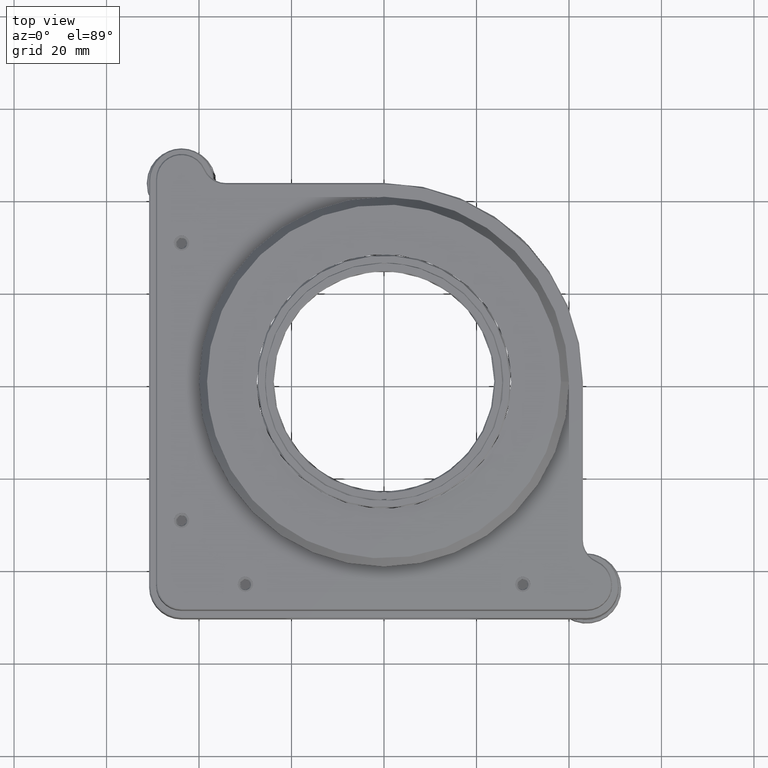
[diagram: clean part render]
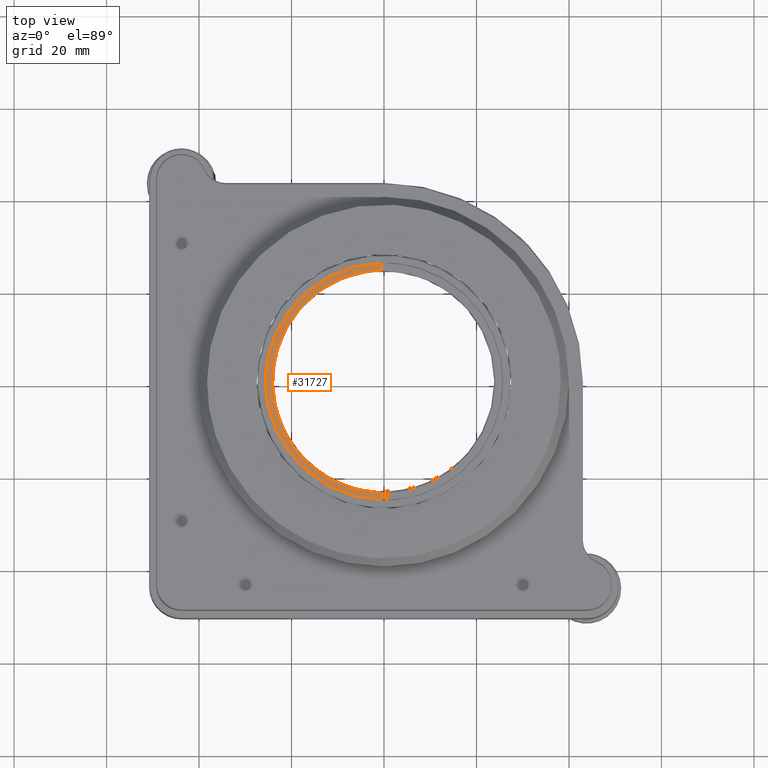
[diagram: same view with one face highlighted and labeled with its STEP entity id]
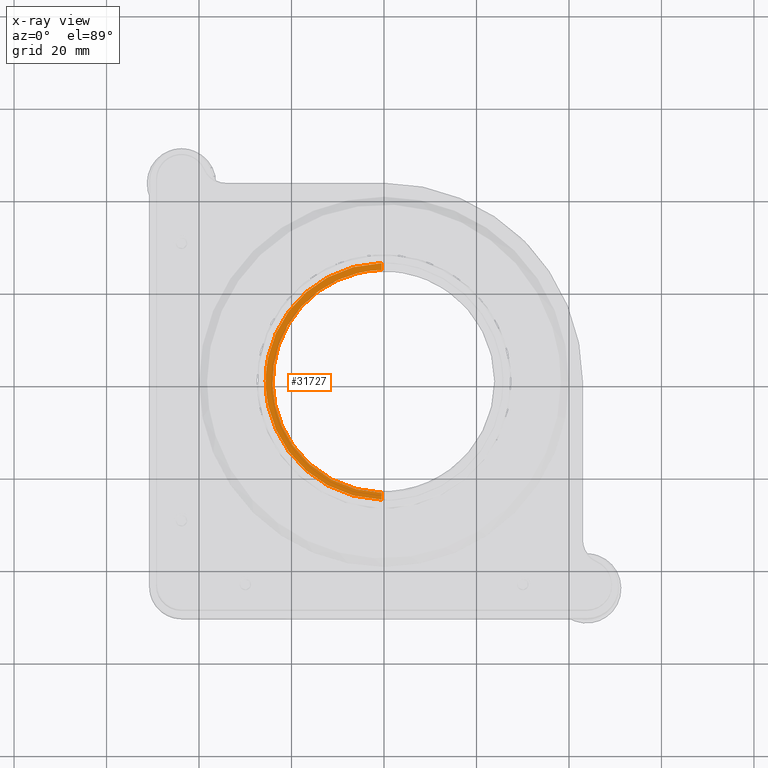
[diagram: x-ray of the same camera — body ghosted, the highlighted face saturated]
A machine part, top view. The second image highlights one B-rep face of the part: STEP entity #31727.
The next image is the same camera in x-ray: the body ghosted, the highlighted face saturated — about 0% of this face is hidden behind the body in this view.
In plain terms, the highlighted planar face has unit normal (0, 0, 1).
Its self-contained STEP definition (entity closure, byte-faithful):
#16 = ORIENTED_EDGE ( 'NONE', *, *, #15220, .T. ) ;
#261 = CARTESIAN_POINT ( 'NONE',  ( -0.5000000000003235190, 25.58961567218268129, 30.99606781186546911 ) ) ;
#489 = CARTESIAN_POINT ( 'NONE',  ( -0.5000000000003163025, -25.58961567218200273, 30.99606781186547266 ) ) ;
#1835 = CARTESIAN_POINT ( 'NONE',  ( -17.05387721565734083, -19.16455730772742427, 30.99606781186547266 ) ) ;
#1964 = CARTESIAN_POINT ( 'NONE',  ( -28.10515000000033226, -30.70873880661847366, 30.99606781186547266 ) ) ;
#2029 = CARTESIAN_POINT ( 'NONE',  ( -11.32870317585508069, -23.01167364696198447, 30.99606781186547622 ) ) ;
#2480 = CARTESIAN_POINT ( 'NONE',  ( -0.5000000000003235190, 25.58961567218268129, 30.99606781186546911 ) ) ;
#2624 = CARTESIAN_POINT ( 'NONE',  ( -1.993081340476116292, 25.56044209334502071, 30.99606781186546911 ) ) ;
#3100 = LINE ( 'NONE', #36420, #34855 ) ;
#3405 = CARTESIAN_POINT ( 'NONE',  ( -6.660298852805282444, 24.76401862340829396, 30.99606781186546556 ) ) ;
#4082 = AXIS2_PLACEMENT_3D ( 'NONE', #1964, #34892, #19887 ) ;
#4416 = CARTESIAN_POINT ( 'NONE',  ( -22.45286859668458845, -12.40650287171896515, 30.99606781186547622 ) ) ;
#5103 = FACE_OUTER_BOUND ( 'NONE', #16960, .T. ) ;
#5150 = B_SPLINE_CURVE_WITH_KNOTS ( 'NONE', 3,
 ( #489, #12501, #21563, #33598, #26064, #2029, #23315, #28830, #1835, #19763, #23121, #4416, #16798, #16610, #14023, #5170, #8132, #38104 ),
 .UNSPECIFIED., .F., .F.,
 ( 4, 2, 2, 2, 2, 2, 2, 2, 4 ),
 ( 0.000000000000000000, 4.962964347235176987, 9.925928694470353975, 14.88889304170553096, 19.85185738894070795, 24.81482173617588671, 29.77778608341106192, 34.74075043064623713, 39.70371477788141590 ),
 .UNSPECIFIED. ) ;
#5170 = CARTESIAN_POINT ( 'NONE',  ( -25.46305233572105919, -3.041243978623852318, 30.99606781186546911 ) ) ;
#5772 = CARTESIAN_POINT ( 'NONE',  ( -3.538095713774472628, 25.39878103195824011, 30.99606781186547622 ) ) ;
#6361 = CARTESIAN_POINT ( 'NONE',  ( -11.32870317585507536, 23.01167364696267015, 30.99606781186547622 ) ) ;
#6697 = VERTEX_POINT ( 'NONE', #2480 ) ;
#8132 = CARTESIAN_POINT ( 'NONE',  ( -25.59450000000033754, -1.493366327120758452, 30.99606781186547977 ) ) ;
#8150 = EDGE_CURVE ( 'NONE', #17053, #30018, #5150, .T. ) ;
#8921 = CARTESIAN_POINT ( 'NONE',  ( -17.05387721565734083, 19.16455730772810284, 30.99606781186547266 ) ) ;
#9132 = CARTESIAN_POINT ( 'NONE',  ( -25.59450000000033398, 3.387425111084444810E-13, 30.99606781186547266 ) ) ;
#9320 = CARTESIAN_POINT ( 'NONE',  ( -25.59450000000033754, 1.493366327121444792, 30.99606781186547977 ) ) ;
#9714 = EDGE_CURVE ( 'NONE', #6697, #30018, #23430, .T. ) ;
#10705 = VECTOR ( 'NONE', #11460, 1000.000000000000000 ) ;
#10714 = VERTEX_POINT ( 'NONE', #12961 ) ;
#11460 = DIRECTION ( 'NONE',  ( 0.000000000000000000, 1.000000000000000000, 0.000000000000000000 ) ) ;
#11486 = CARTESIAN_POINT ( 'NONE',  ( -22.45286859668458845, 12.40650287171965260, 30.99606781186547622 ) ) ;
#12501 = CARTESIAN_POINT ( 'NONE',  ( -1.993081340476109853, -25.56044209334433859, 30.99606781186546911 ) ) ;
#12541 = DIRECTION ( 'NONE',  ( 0.000000000000000000, 1.000000000000000000, 0.000000000000000000 ) ) ;
#12961 = CARTESIAN_POINT ( 'NONE',  ( -0.5000000000003174128, -24.08931153540887138, 30.99606781186547266 ) ) ;
#13363 =( BOUNDED_CURVE ( )  B_SPLINE_CURVE ( 2, ( #20160, #26076, #26862, #20348, #29809 ),
 .UNSPECIFIED., .F., .T. ) 
 B_SPLINE_CURVE_WITH_KNOTS ( ( 3, 2, 3 ),
 ( 6.288372600415925717E-18, 0.03716364197085206961, 0.07432728394170411146 ),
 .UNSPECIFIED. ) 
 CURVE ( )  GEOMETRIC_REPRESENTATION_ITEM ( )  RATIONAL_B_SPLINE_CURVE ( ( 0.9915653406035818129, 0.7113866499799355037, 1.000000000000000000, 0.7113866499799357257, 0.9915653406035815909 ) ) 
 REPRESENTATION_ITEM ( '' )  );
#14023 = CARTESIAN_POINT ( 'NONE',  ( -24.88940469625061169, -6.175251659280037941, 30.99606781186547622 ) ) ;
#14828 = CARTESIAN_POINT ( 'NONE',  ( -8.237169048022474627, 24.29044433013205051, 30.99606781186547266 ) ) ;
#15134 = VERTEX_POINT ( 'NONE', #28433 ) ;
#15220 = EDGE_CURVE ( 'NONE', #17053, #10714, #35514, .T. ) ;
#16610 = CARTESIAN_POINT ( 'NONE',  ( -24.44672564178360474, -7.761072417926049738, 30.99606781186547622 ) ) ;
#16733 = PLANE ( 'NONE',  #4082 ) ;
#16798 = CARTESIAN_POINT ( 'NONE',  ( -23.22859349420336983, -10.87699792966710532, 30.99606781186547622 ) ) ;
#16960 = EDGE_LOOP ( 'NONE', ( #19605, #28869, #21211, #16, #27412 ) ) ;
#17053 = VERTEX_POINT ( 'NONE', #17857 ) ;
#17857 = CARTESIAN_POINT ( 'NONE',  ( -0.5000000000003163025, -25.58961567218200273, 30.99606781186547266 ) ) ;
#19605 = ORIENTED_EDGE ( 'NONE', *, *, #24306, .T. ) ;
#19763 = CARTESIAN_POINT ( 'NONE',  ( -19.49405515404105316, -16.67623454317832454, 30.99606781186547622 ) ) ;
#19887 = DIRECTION ( 'NONE',  ( 1.000000000000000000, 0.000000000000000000, 0.000000000000000000 ) ) ;
#20160 = CARTESIAN_POINT ( 'NONE',  ( -0.5000000000003174128, -24.08931153540887138, 30.99606781186547266 ) ) ;
#20348 = CARTESIAN_POINT ( 'NONE',  ( -24.09450000000030556, 23.59958188985030603, 30.99606781186547977 ) ) ;
#21211 = ORIENTED_EDGE ( 'NONE', *, *, #8150, .F. ) ;
#21563 = CARTESIAN_POINT ( 'NONE',  ( -3.538095713774465523, -25.39878103195754733, 30.99606781186547622 ) ) ;
#23121 = CARTESIAN_POINT ( 'NONE',  ( -20.58553880366165956, -15.30647620743889270, 30.99606781186547622 ) ) ;
#23315 = CARTESIAN_POINT ( 'NONE',  ( -12.84276210207169200, -22.20621722210998072, 30.99606781186547266 ) ) ;
#23430 = B_SPLINE_CURVE_WITH_KNOTS ( 'NONE', 3,
 ( #261, #2624, #5772, #3405, #14828, #6361, #30398, #35942, #8921, #26860, #30213, #11486, #23917, #23722, #33178, #36339, #9320, #9132 ),
 .UNSPECIFIED., .F., .F.,
 ( 4, 2, 2, 2, 2, 2, 2, 2, 4 ),
 ( 0.000000000000000000, 4.962964347235176099, 9.925928694470352198, 14.88889304170552919, 19.85185738894070440, 24.81482173617587961, 29.77778608341105837, 34.74075043064623003, 39.70371477788140879 ),
 .UNSPECIFIED. ) ;
#23693 = CARTESIAN_POINT ( 'NONE',  ( -0.5000000000003230749, -30.70873880661847366, 30.99606781186547266 ) ) ;
#23722 = CARTESIAN_POINT ( 'NONE',  ( -24.44672564178360474, 7.761072417926730971, 30.99606781186547622 ) ) ;
#23917 = CARTESIAN_POINT ( 'NONE',  ( -23.22859349420337338, 10.87699792966778567, 30.99606781186547622 ) ) ;
#24306 = EDGE_CURVE ( 'NONE', #15134, #6697, #3100, .T. ) ;
#25614 = EDGE_CURVE ( 'NONE', #10714, #15134, #13363, .T. ) ;
#26064 = CARTESIAN_POINT ( 'NONE',  ( -8.237169048022476403, -24.29044433013136839, 30.99606781186547266 ) ) ;
#26076 = CARTESIAN_POINT ( 'NONE',  ( -24.09450000000031267, -23.59958188984963812, 30.99606781186548687 ) ) ;
#26860 = CARTESIAN_POINT ( 'NONE',  ( -19.49405515404105671, 16.67623454317900311, 30.99606781186547622 ) ) ;
#26862 = CARTESIAN_POINT ( 'NONE',  ( -24.09450000000031622, 3.425096565323241294E-13, 30.99606781186547622 ) ) ;
#27412 = ORIENTED_EDGE ( 'NONE', *, *, #25614, .T. ) ;
#28433 = CARTESIAN_POINT ( 'NONE',  ( -0.5000000000003222977, 24.08931153540956061, 30.99606781186547266 ) ) ;
#28611 = CARTESIAN_POINT ( 'NONE',  ( -25.59450000000033398, 3.387425111084444810E-13, 30.99606781186547266 ) ) ;
#28830 = CARTESIAN_POINT ( 'NONE',  ( -15.70570289888890692, -20.28259150547036782, 30.99606781186547622 ) ) ;
#28869 = ORIENTED_EDGE ( 'NONE', *, *, #9714, .T. ) ;
#29809 = CARTESIAN_POINT ( 'NONE',  ( -0.5000000000003222977, 24.08931153540956061, 30.99606781186547266 ) ) ;
#30018 = VERTEX_POINT ( 'NONE', #28611 ) ;
#30213 = CARTESIAN_POINT ( 'NONE',  ( -20.58553880366165245, 15.30647620743957837, 30.99606781186547622 ) ) ;
#30398 = CARTESIAN_POINT ( 'NONE',  ( -12.84276210207169910, 22.20621722211066640, 30.99606781186547266 ) ) ;
#31727 = ADVANCED_FACE ( 'NONE', ( #5103 ), #16733, .T. ) ;
#33178 = CARTESIAN_POINT ( 'NONE',  ( -24.88940469625061169, 6.175251659280717398, 30.99606781186547622 ) ) ;
#33598 = CARTESIAN_POINT ( 'NONE',  ( -6.660298852805277114, -24.76401862340761184, 30.99606781186546556 ) ) ;
#34855 = VECTOR ( 'NONE', #12541, 1000.000000000000000 ) ;
#34892 = DIRECTION ( 'NONE',  ( 0.000000000000000000, 0.000000000000000000, 1.000000000000000000 ) ) ;
#35514 = LINE ( 'NONE', #23693, #10705 ) ;
#35942 = CARTESIAN_POINT ( 'NONE',  ( -15.70570289888890692, 20.28259150547105349, 30.99606781186547622 ) ) ;
#36339 = CARTESIAN_POINT ( 'NONE',  ( -25.46305233572105919, 3.041243978624531774, 30.99606781186546911 ) ) ;
#36420 = CARTESIAN_POINT ( 'NONE',  ( -0.5000000000003300693, -30.70873880661847366, 30.99606781186547266 ) ) ;
#38104 = CARTESIAN_POINT ( 'NONE',  ( -25.59450000000033398, 3.387425111084444810E-13, 30.99606781186547266 ) ) ;